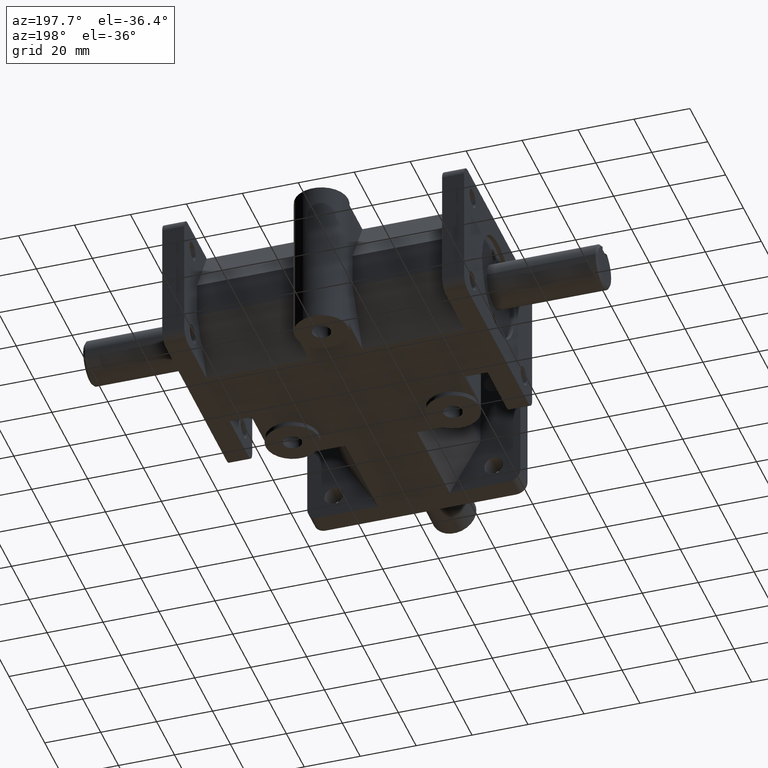
[diagram: clean part render]
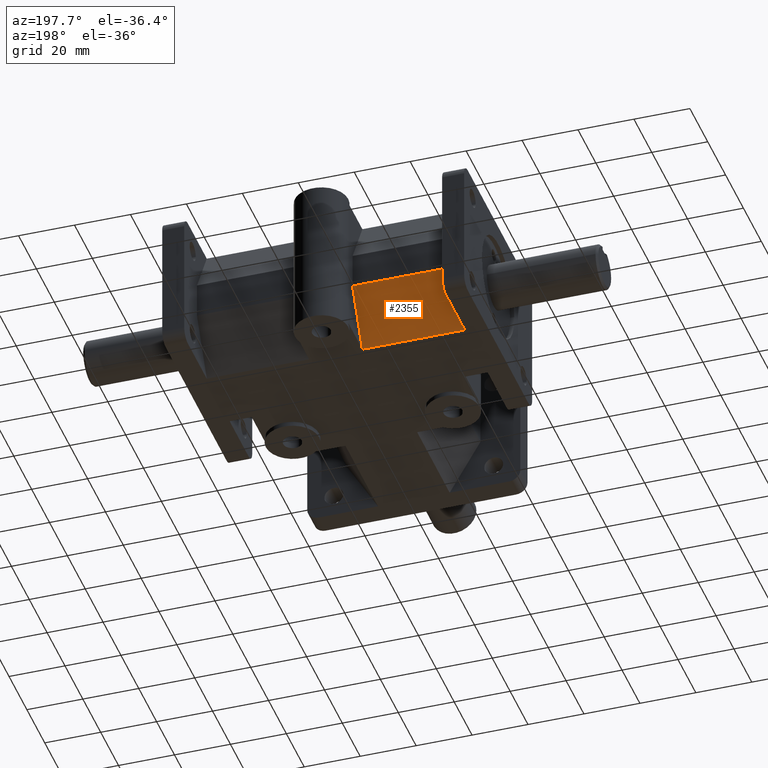
[diagram: same view with one face highlighted and labeled with its STEP entity id]
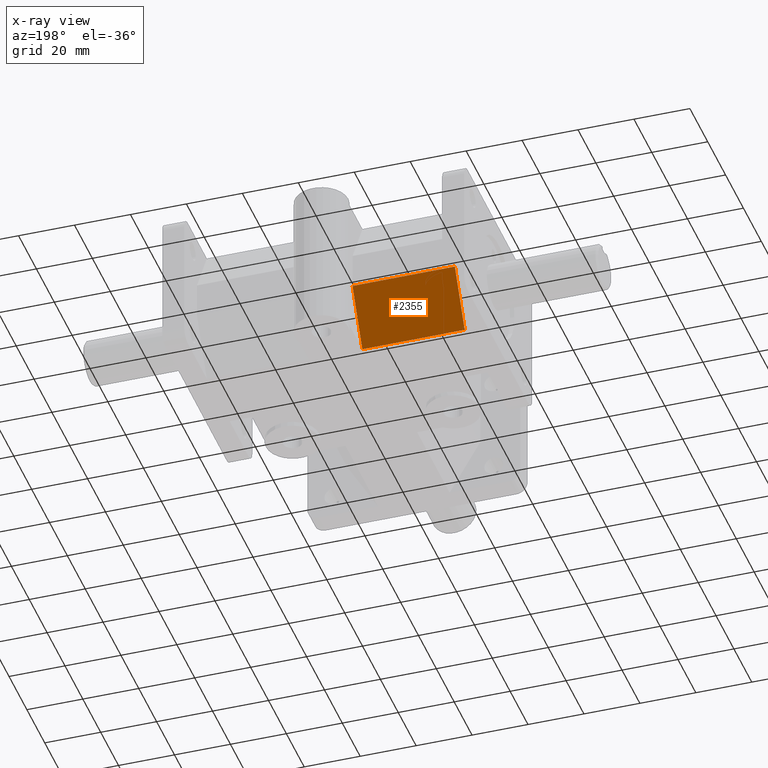
[diagram: x-ray of the same camera — body ghosted, the highlighted face saturated]
A machine part, auxiliary view. The second image highlights one B-rep face of the part: STEP entity #2355.
The next image is the same camera in x-ray: the body ghosted, the highlighted face saturated — about 0% of this face is hidden behind the body in this view.
In plain terms, the highlighted planar face has unit normal (0, 0.866, -0.5).
Its self-contained STEP definition (entity closure, byte-faithful):
#114=PLANE('',#2591);
#236=FACE_OUTER_BOUND('',#388,.T.);
#388=EDGE_LOOP('',(#1999,#2000,#2001,#2002));
#537=LINE('',#3649,#759);
#626=LINE('',#3913,#848);
#627=LINE('',#3915,#849);
#628=LINE('',#3916,#850);
#759=VECTOR('',#2934,1.);
#848=VECTOR('',#3183,1.);
#849=VECTOR('',#3184,1.);
#850=VECTOR('',#3185,1.);
#1122=VERTEX_POINT('',#3646);
#1123=VERTEX_POINT('',#3648);
#1200=VERTEX_POINT('',#3912);
#1201=VERTEX_POINT('',#3914);
#1371=EDGE_CURVE('',#1123,#1122,#537,.T.);
#1496=EDGE_CURVE('',#1200,#1123,#626,.F.);
#1497=EDGE_CURVE('',#1122,#1201,#627,.F.);
#1498=EDGE_CURVE('',#1201,#1200,#628,.T.);
#1999=ORIENTED_EDGE('',*,*,#1496,.T.);
#2000=ORIENTED_EDGE('',*,*,#1371,.T.);
#2001=ORIENTED_EDGE('',*,*,#1497,.T.);
#2002=ORIENTED_EDGE('',*,*,#1498,.T.);
#2355=ADVANCED_FACE('',(#236),#114,.T.);
#2591=AXIS2_PLACEMENT_3D('',#3911,#3181,#3182);
#2934=DIRECTION('',(-1.,0.,0.));
#3181=DIRECTION('center_axis',(0.,0.866025254730536,-0.500000258168844));
#3182=DIRECTION('ref_axis',(0.,-0.500000258168844,-0.866025254730536));
#3183=DIRECTION('',(0.,0.500000258168844,0.866025254730536));
#3184=DIRECTION('',(0.,-0.500000258168844,-0.866025254730536));
#3185=DIRECTION('',(1.,0.,0.));
#3646=CARTESIAN_POINT('',(-1.815,3.754487,-1.));
#3648=CARTESIAN_POINT('',(-0.375,3.754487,-1.));
#3649=CARTESIAN_POINT('',(-0.1875,3.754487,-1.));
#3911=CARTESIAN_POINT('Origin',(-0.1875,3.9709935,-0.625));
#3912=CARTESIAN_POINT('',(-0.375,4.1875,-0.25));
#3913=CARTESIAN_POINT('',(-0.375,4.15743588121701,-0.302072545367561));
#3914=CARTESIAN_POINT('',(-1.815,4.1875,-0.25));
#3915=CARTESIAN_POINT('',(-1.815,4.13337335636825,-0.343750032271114));
#3916=CARTESIAN_POINT('',(-0.1875,4.1875,-0.25));